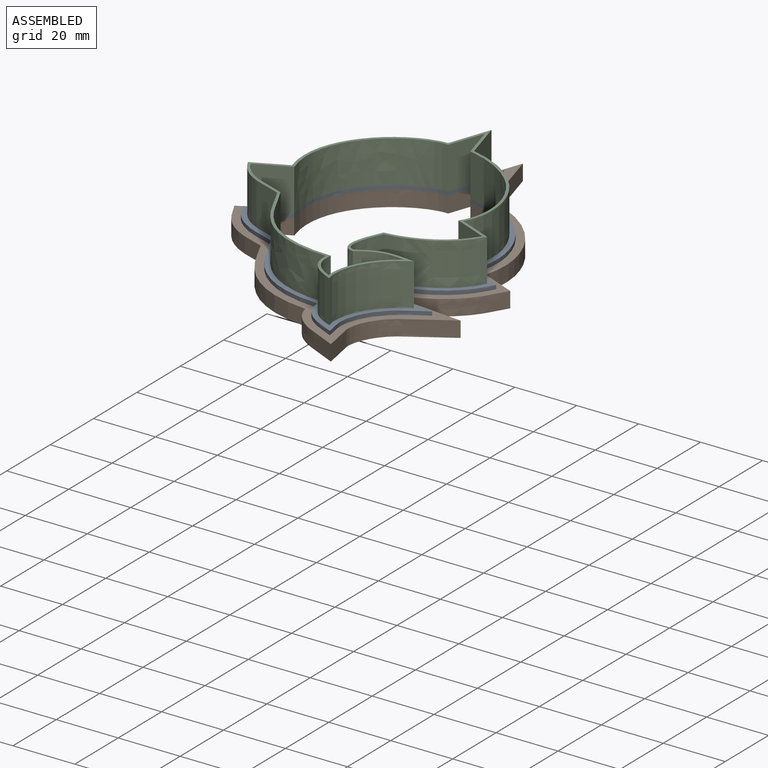
[diagram: assembled view]
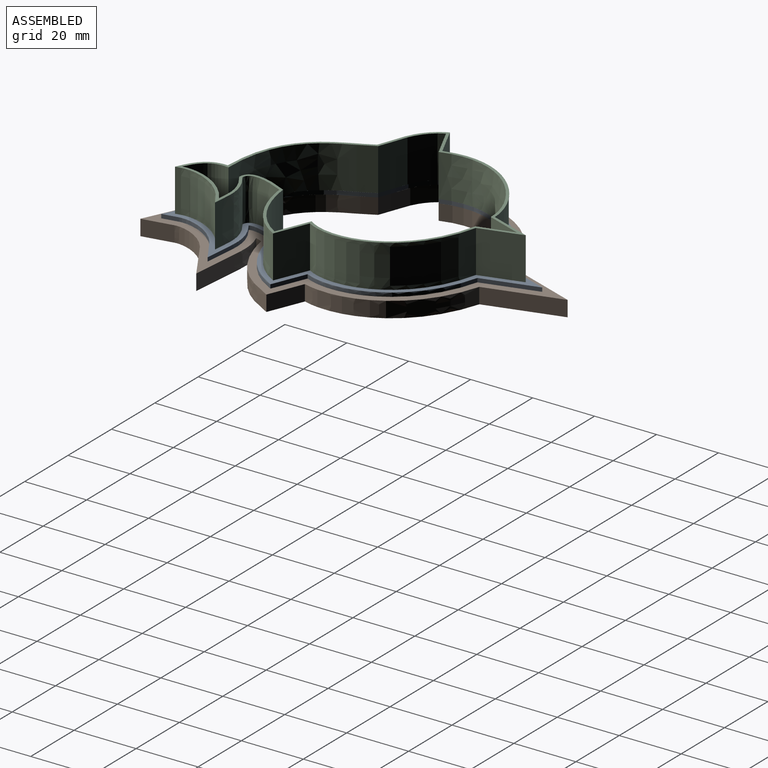
[diagram: assembled view, second angle]
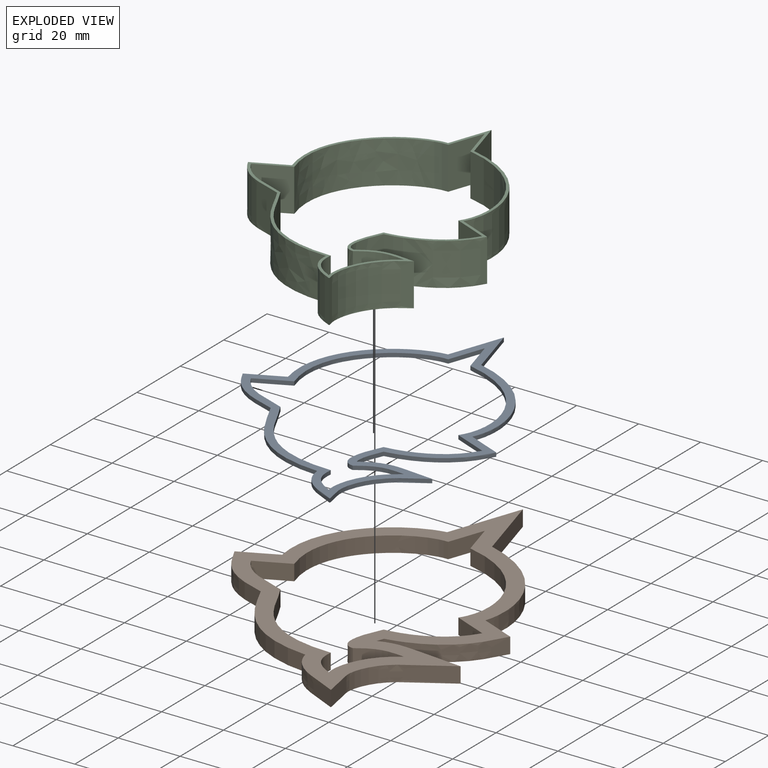
[diagram: exploded view]
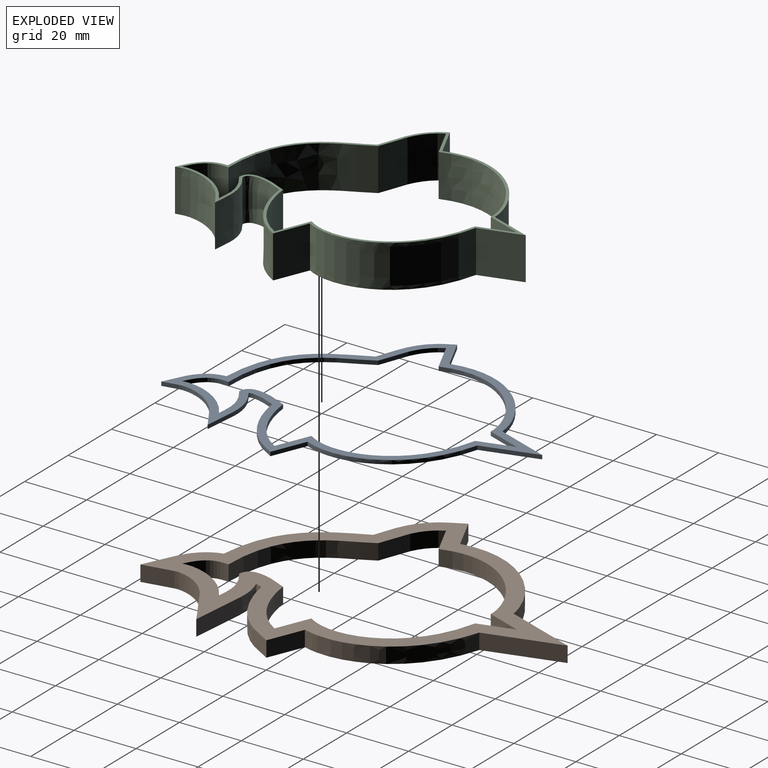
[diagram: exploded view, second angle]
ASSEMBLY  parts=3 mates=2
PART A: 28 faces, bbox 84.1x109.8x2.1 mm
  f0: plane 109.76x84.09mm, normal (0,0,1), area 828.8mm2, adj f2,f3,f4,f5,f6,f7,f8,f9
  f1: plane 109.76x84.09mm, normal (0,0,-1), area 828.8mm2, adj f2,f3,f4,f5,f6,f7,f8,f9
  f2: extruded ~35.75x27.41mm, area 63.6mm2, adj f0,f1,f3,f14
  f3: plane 10.98x5.18mm, normal (-0.43,0.9,0), area 15.4mm2, adj f0,f1,f2,f4
  f4: extruded ~18.43x13.39mm, area 30mm2, adj f0,f1,f3,f5
  f5: extruded ~32.75x25.28mm, area 56.4mm2, adj f0,f1,f4,f6
  f6: extruded ~12.6x12.22mm, area 23.6mm2, adj f0,f1,f5,f7
  f7: extruded ~25.58x16.21mm, area 41.7mm2, adj f0,f1,f6,f8
  f8: extruded ~22.55x3.48mm, area 29.7mm2, adj f0,f1,f7,f9
  f9: extruded ~9.11x2.44mm, area 12.2mm2, adj f0,f1,f8,f10
  f10: extruded ~24.65x16.69mm, area 39.5mm2, adj f0,f1,f9,f11
  f11: plane 10.82x4.44mm, normal (0.38,0.93,0), area 14.9mm2, adj f0,f1,f10,f12
  f12: extruded ~38.13x25.66mm, area 64.9mm2, adj f0,f1,f11,f13
  f13: plane 17.5x4.95mm, normal (0.96,0.27,0), area 23.1mm2, adj f0,f1,f12,f14
  f14: plane 17.13x6.06mm, normal (-0.94,0.33,0), area 23.1mm2, adj f0,f1,f2,f13
  f15: extruded ~34.65x26.7mm, area 62.7mm2, adj f0,f1,f16,f27
  f16: plane 10.52x4.97mm, normal (0.43,-0.9,0), area 14.8mm2, adj f0,f1,f15,f17
  f17: extruded ~16.7x10.21mm, area 25.6mm2, adj f0,f1,f16,f18
  f18: extruded ~33.59x24.81mm, area 57.4mm2, adj f0,f1,f17,f19
  f19: extruded ~10.31x6.67mm, area 16.9mm2, adj f0,f1,f18,f20
  f20: extruded ~19.35x10.89mm, area 29.6mm2, adj f0,f1,f19,f21
  f21: extruded ~14.15x3.66mm, area 19mm2, adj f0,f1,f20,f22
  f22: extruded ~14.18x3.3mm, area 21.2mm2, adj f0,f1,f21,f23
  f23: extruded ~22.67x13.09mm, area 34.5mm2, adj f0,f1,f22,f24
  f24: plane 10.78x4.43mm, normal (-0.38,-0.93,0), area 14.8mm2, adj f0,f1,f23,f25
  f25: extruded ~37.27x25.15mm, area 64.5mm2, adj f0,f1,f24,f26
  f26: plane 11.24x3.18mm, normal (-0.96,-0.27,0), area 14.8mm2, adj f0,f1,f25,f27
  f27: plane 11.24x3.97mm, normal (0.94,-0.33,0), area 15.1mm2, adj f0,f1,f15,f26
PART B: 28 faces, bbox 94.6x125.9x9.3 mm
  f0: plane 125.95x94.64mm, normal (0,0,1), area 1749.3mm2, adj f2,f3,f4,f5,f6,f7,f8,f9
  f1: plane 125.95x94.64mm, normal (0,0,-1), area 1749.3mm2, adj f2,f3,f4,f5,f6,f7,f8,f9
  f2: extruded ~36.64x28.09mm, area 257.7mm2, adj f0,f1,f3,f14
  f3: plane 11.57x5.46mm, normal (-0.43,0.9,0), area 65mm2, adj f0,f1,f2,f4
  f4: extruded ~20.12x16.59mm, area 138.7mm2, adj f0,f1,f3,f5
  f5: extruded ~32.32x25.64mm, area 223.4mm2, adj f0,f1,f4,f6
  f6: extruded ~18.23x14.2mm, area 122mm2, adj f0,f1,f5,f7
  f7: extruded ~31.8x21.52mm, area 219.9mm2, adj f0,f1,f6,f8
  f8: extruded ~27.31x5.08mm, area 139.9mm2, adj f0,f1,f7,f9
  f9: extruded ~5.08x2.26mm, area 12.3mm2, adj f0,f1,f8,f10
  f10: extruded ~26.56x20.22mm, area 176.9mm2, adj f0,f1,f9,f11
  f11: plane 11.23x5.08mm, normal (0.38,0.93,0), area 61.6mm2, adj f0,f1,f10,f12
  f12: extruded ~38.78x26.14mm, area 261.1mm2, adj f0,f1,f11,f13
  f13: plane 23.81x6.74mm, normal (0.96,0.27,0), area 125.7mm2, adj f0,f1,f12,f14
  f14: plane 23.19x8.2mm, normal (-0.94,0.33,0), area 124.9mm2, adj f0,f1,f2,f13
  f15: extruded ~34.65x26.7mm, area 250.9mm2, adj f0,f1,f16,f27
  f16: plane 10.52x5.08mm, normal (0.43,-0.9,0), area 59.1mm2, adj f0,f1,f15,f17
  f17: extruded ~16.7x10.21mm, area 102.4mm2, adj f0,f1,f16,f18
  f18: extruded ~33.59x24.81mm, area 229.7mm2, adj f0,f1,f17,f19
  f19: extruded ~10.31x6.67mm, area 67.6mm2, adj f0,f1,f18,f20
  f20: extruded ~19.35x10.89mm, area 118.5mm2, adj f0,f1,f19,f21
  f21: extruded ~14.15x5.08mm, area 76.2mm2, adj f0,f1,f20,f22
  f22: extruded ~14.18x5.08mm, area 84.7mm2, adj f0,f1,f21,f23
  f23: extruded ~22.67x13.09mm, area 138mm2, adj f0,f1,f22,f24
  f24: plane 10.78x5.08mm, normal (-0.38,-0.93,0), area 59.2mm2, adj f0,f1,f23,f25
  f25: extruded ~37.27x25.15mm, area 257.8mm2, adj f0,f1,f24,f26
  f26: plane 11.24x5.08mm, normal (-0.96,-0.27,0), area 59.3mm2, adj f0,f1,f25,f27
  f27: plane 11.24x5.08mm, normal (0.94,-0.33,0), area 60.5mm2, adj f0,f1,f15,f26
PART C: 28 faces, bbox 79.3x101.3x14.4 mm
  f0: plane 101.31x79.3mm, normal (0,0,1), area 279.5mm2, adj f2,f3,f4,f5,f6,f7,f8,f9
  f1: plane 101.31x79.3mm, normal (0,0,-1), area 279.5mm2, adj f2,f3,f4,f5,f6,f7,f8,f9
  f2: extruded ~35.07x26.97mm, area 681mm2, adj f0,f1,f3,f14
  f3: plane 13.72x10.67mm, normal (-0.43,0.9,0), area 161.8mm2, adj f0,f1,f2,f4
  f4: extruded ~17.31x13.72mm, area 293.6mm2, adj f0,f1,f3,f5
  f5: extruded ~33.25x24.99mm, area 615.7mm2, adj f0,f1,f4,f6
  f6: extruded ~13.72x10.96mm, area 208.1mm2, adj f0,f1,f5,f7
  f7: extruded ~21.53x13.72mm, area 365.1mm2, adj f0,f1,f6,f8
  f8: extruded ~17.15x13.72mm, area 246.7mm2, adj f0,f1,f7,f9
  f9: extruded ~13.72x12.44mm, area 193.7mm2, adj f0,f1,f8,f10
  f10: extruded ~23.37x14.36mm, area 391.3mm2, adj f0,f1,f9,f11
  f11: plane 13.72x10.74mm, normal (0.38,0.93,0), area 159.2mm2, adj f0,f1,f10,f12
  f12: extruded ~37.6x25.33mm, area 697.6mm2, adj f0,f1,f11,f13
  f13: plane 13.72x13.42mm, normal (0.96,0.27,0), area 191.3mm2, adj f0,f1,f12,f14
  f14: plane 13.72x13.28mm, normal (-0.94,0.33,0), area 193.2mm2, adj f0,f1,f2,f13
  f15: extruded ~34.65x26.7mm, area 677.4mm2, adj f0,f1,f16,f27
  f16: plane 13.72x10.52mm, normal (0.43,-0.9,0), area 159.6mm2, adj f0,f1,f15,f17
  f17: extruded ~16.7x13.72mm, area 276.5mm2, adj f0,f1,f16,f18
  f18: extruded ~33.59x24.81mm, area 620.1mm2, adj f0,f1,f17,f19
  f19: extruded ~13.72x10.31mm, area 182.5mm2, adj f0,f1,f18,f20
  f20: extruded ~19.35x13.72mm, area 319.9mm2, adj f0,f1,f19,f21
  f21: extruded ~14.15x13.72mm, area 205.7mm2, adj f0,f1,f20,f22
  f22: extruded ~14.18x13.72mm, area 228.6mm2, adj f0,f1,f21,f23
  f23: extruded ~22.67x13.72mm, area 372.6mm2, adj f0,f1,f22,f24
  f24: plane 13.72x10.78mm, normal (-0.38,-0.93,0), area 159.9mm2, adj f0,f1,f23,f25
  f25: extruded ~37.27x25.15mm, area 696.1mm2, adj f0,f1,f24,f26
  f26: plane 13.72x11.24mm, normal (-0.96,-0.27,0), area 160.2mm2, adj f0,f1,f25,f27
  f27: plane 13.72x11.24mm, normal (0.94,-0.33,0), area 163.5mm2, adj f0,f1,f15,f26
PLACE A t=(182.28,4.12,5.08)mm
PLACE B at identity
PLACE C t=(101.39,0.37,6.35)mm
MATE fastened A.f1 <-> B.f0  axis (0,0,1) through (64.75,3,5.08)mm
MATE fastened A.f0 <-> C.f1  axis (0,0,1) through (119.58,0.37,6.35)mm
